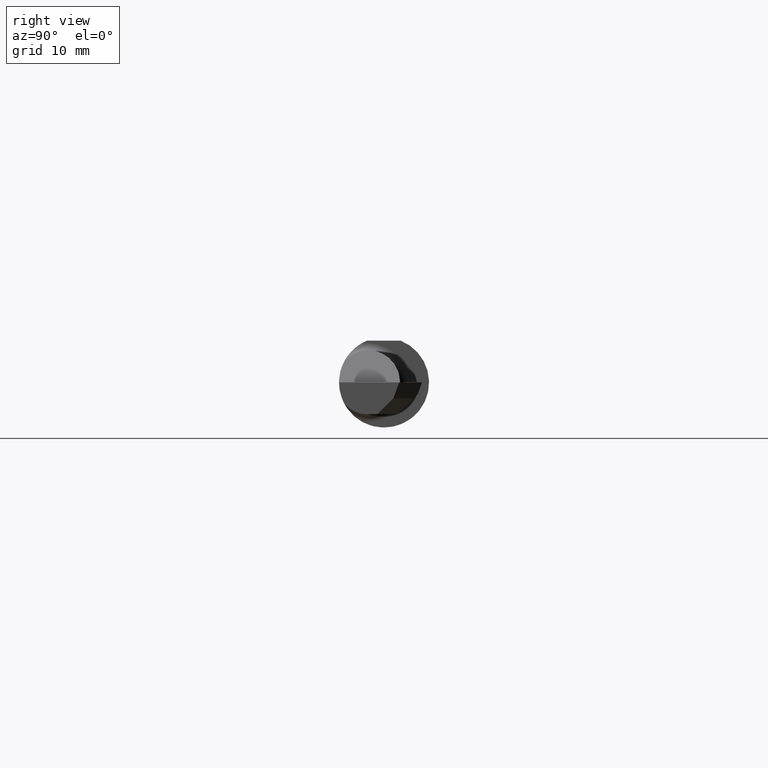
[diagram: clean part render]
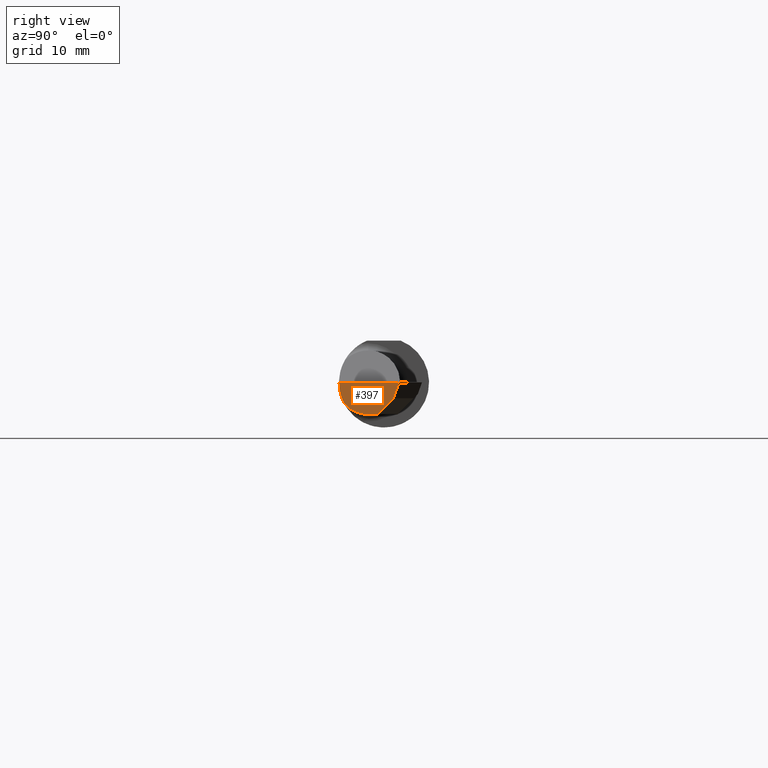
[diagram: same view with one face highlighted and labeled with its STEP entity id]
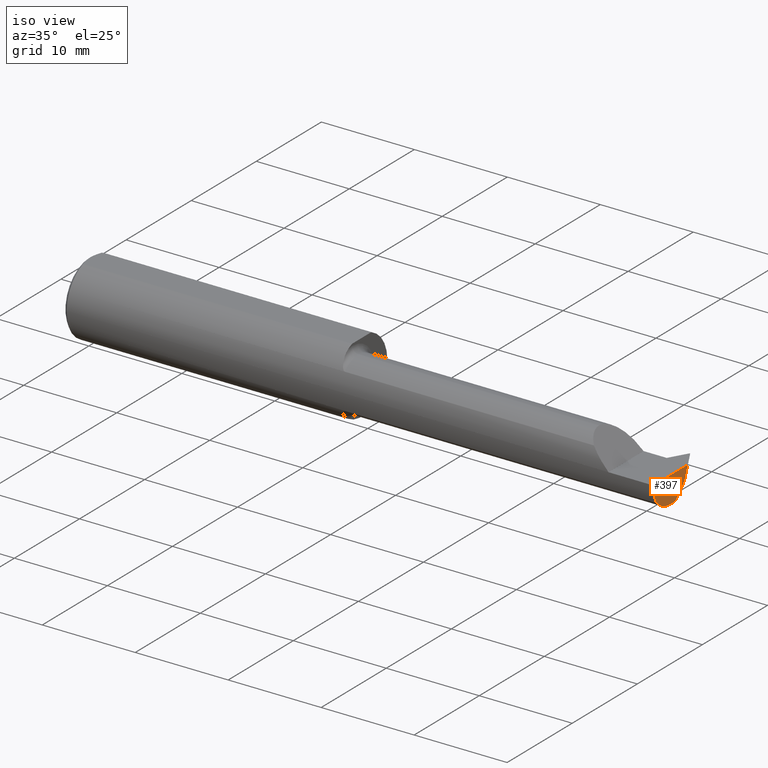
[diagram: same view with one face highlighted and labeled with its STEP entity id]
A machine part, right view. The second image highlights one B-rep face of the part: STEP entity #397.
A second angle (iso view) of the same face is appended — the face is thin or edge-on in the first view.
In plain terms, the highlighted planar face has unit normal (1, 0, 0).
Its self-contained STEP definition (entity closure, byte-faithful):
#4 = DIRECTION ( 'NONE',  ( 0.000000000000000000, 0.000000000000000000, -1.000000000000000000 ) ) ;
#25 = DIRECTION ( 'NONE',  ( -0.000000000000000000, 1.000000000000000000, -0.000000000000000000 ) ) ;
#41 = EDGE_CURVE ( 'NONE', #890, #160, #497, .T. ) ;
#43 = CARTESIAN_POINT ( 'NONE',  ( 2.500000000000000000, 0.03276743523313500189, -0.05500000000000003497 ) ) ;
#54 = VECTOR ( 'NONE', #25, 39.37007874015748143 ) ;
#89 = CARTESIAN_POINT ( 'NONE',  ( 2.500000000000000000, 0.04656774611420267523, -0.01684164052992337748 ) ) ;
#110 = AXIS2_PLACEMENT_3D ( 'NONE', #312, #904, #396 ) ;
#143 = LINE ( 'NONE', #499, #542 ) ;
#160 = VERTEX_POINT ( 'NONE', #248 ) ;
#228 = DIRECTION ( 'NONE',  ( 0.000000000000000000, 0.000000000000000000, 1.000000000000000000 ) ) ;
#234 = CARTESIAN_POINT ( 'NONE',  ( 2.500000000000000000, -0.1560999999999999333, -3.979970649922725226E-17 ) ) ;
#248 = CARTESIAN_POINT ( 'NONE',  ( 2.500000000000000000, -0.1368622504537203854, -0.07507286061382703601 ) ) ;
#273 = ORIENTED_EDGE ( 'NONE', *, *, #635, .F. ) ;
#300 = DIRECTION ( 'NONE',  ( 1.000000000000000000, 0.000000000000000000, 0.000000000000000000 ) ) ;
#301 = ORIENTED_EDGE ( 'NONE', *, *, #41, .T. ) ;
#312 = CARTESIAN_POINT ( 'NONE',  ( 2.500000000000000000, 0.000000000000000000, 0.000000000000000000 ) ) ;
#316 = VECTOR ( 'NONE', #372, 39.37007874015748854 ) ;
#367 = EDGE_CURVE ( 'NONE', #643, #737, #143, .T. ) ;
#372 = DIRECTION ( 'NONE',  ( 0.000000000000000000, 0.7071067811865474617, 0.7071067811865474617 ) ) ;
#387 = DIRECTION ( 'NONE',  ( 0.000000000000000000, -0.3401001459858862819, -0.9403892229818348047 ) ) ;
#392 = AXIS2_PLACEMENT_3D ( 'NONE', #888, #300, #4 ) ;
#395 = EDGE_CURVE ( 'NONE', #160, #643, #870, .T. ) ;
#396 = DIRECTION ( 'NONE',  ( 0.000000000000000000, 0.000000000000000000, -1.000000000000000000 ) ) ;
#397 = ADVANCED_FACE ( 'NONE', ( #521 ), #666, .T. ) ;
#450 = EDGE_LOOP ( 'NONE', ( #874, #951, #273, #301, #799, #911 ) ) ;
#493 = EDGE_CURVE ( 'NONE', #524, #628, #597, .T. ) ;
#497 = CIRCLE ( 'NONE', #110, 0.1560999999999999888 ) ;
#499 = CARTESIAN_POINT ( 'NONE',  ( 2.500000000000000000, 0.1097552276659281845, -0.1110000000000011811 ) ) ;
#509 = CARTESIAN_POINT ( 'NONE',  ( 2.500000000000000000, -0.04723256476686502059, -0.1350000000000000644 ) ) ;
#515 = DIRECTION ( 'NONE',  ( 1.000000000000000000, -0.000000000000000000, -0.000000000000000000 ) ) ;
#521 = FACE_OUTER_BOUND ( 'NONE', #450, .T. ) ;
#524 = VERTEX_POINT ( 'NONE', #744 ) ;
#542 = VECTOR ( 'NONE', #797, 39.37007874015748143 ) ;
#590 = AXIS2_PLACEMENT_3D ( 'NONE', #733, #515, #228 ) ;
#597 = LINE ( 'NONE', #89, #652 ) ;
#628 = VERTEX_POINT ( 'NONE', #43 ) ;
#635 = EDGE_CURVE ( 'NONE', #890, #524, #764, .T. ) ;
#643 = VERTEX_POINT ( 'NONE', #759 ) ;
#652 = VECTOR ( 'NONE', #387, 39.37007874015748854 ) ;
#666 = PLANE ( 'NONE',  #392 ) ;
#733 = CARTESIAN_POINT ( 'NONE',  ( 2.500000000000000000, -0.05509999999999999620, 0.000000000000000000 ) ) ;
#737 = VERTEX_POINT ( 'NONE', #783 ) ;
#744 = CARTESIAN_POINT ( 'NONE',  ( 2.500000000000000000, 0.05265867555372412412, 0.000000000000000000 ) ) ;
#759 = CARTESIAN_POINT ( 'NONE',  ( 2.500000000000000000, -0.05510000000000080111, -0.1109999999999999737 ) ) ;
#764 = LINE ( 'NONE', #768, #54 ) ;
#768 = CARTESIAN_POINT ( 'NONE',  ( 2.500000000000000000, 0.1749999999999999889, -3.979970649922725226E-17 ) ) ;
#783 = CARTESIAN_POINT ( 'NONE',  ( 2.500000000000000000, -0.02323256476686515540, -0.1110000000000001957 ) ) ;
#797 = DIRECTION ( 'NONE',  ( -0.000000000000000000, 1.000000000000000000, -7.353467429283449659E-15 ) ) ;
#799 = ORIENTED_EDGE ( 'NONE', *, *, #395, .T. ) ;
#870 = CIRCLE ( 'NONE', #590, 0.1109999999999999876 ) ;
#874 = ORIENTED_EDGE ( 'NONE', *, *, #908, .T. ) ;
#888 = CARTESIAN_POINT ( 'NONE',  ( 2.500000000000000000, 0.000000000000000000, 0.000000000000000000 ) ) ;
#890 = VERTEX_POINT ( 'NONE', #234 ) ;
#904 = DIRECTION ( 'NONE',  ( 1.000000000000000000, 0.000000000000000000, 0.000000000000000000 ) ) ;
#907 = LINE ( 'NONE', #509, #316 ) ;
#908 = EDGE_CURVE ( 'NONE', #737, #628, #907, .T. ) ;
#911 = ORIENTED_EDGE ( 'NONE', *, *, #367, .T. ) ;
#951 = ORIENTED_EDGE ( 'NONE', *, *, #493, .F. ) ;